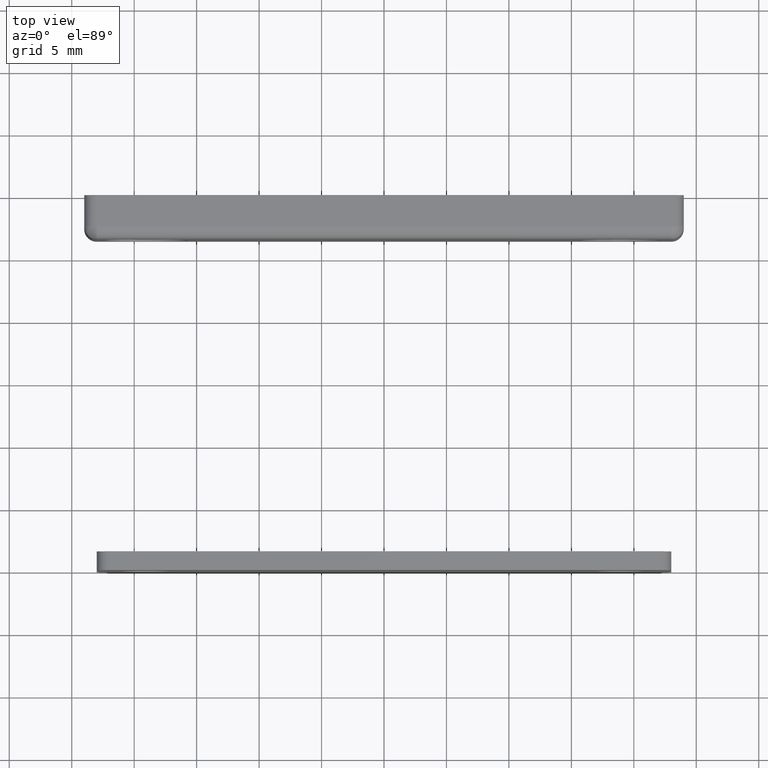
[diagram: clean part render]
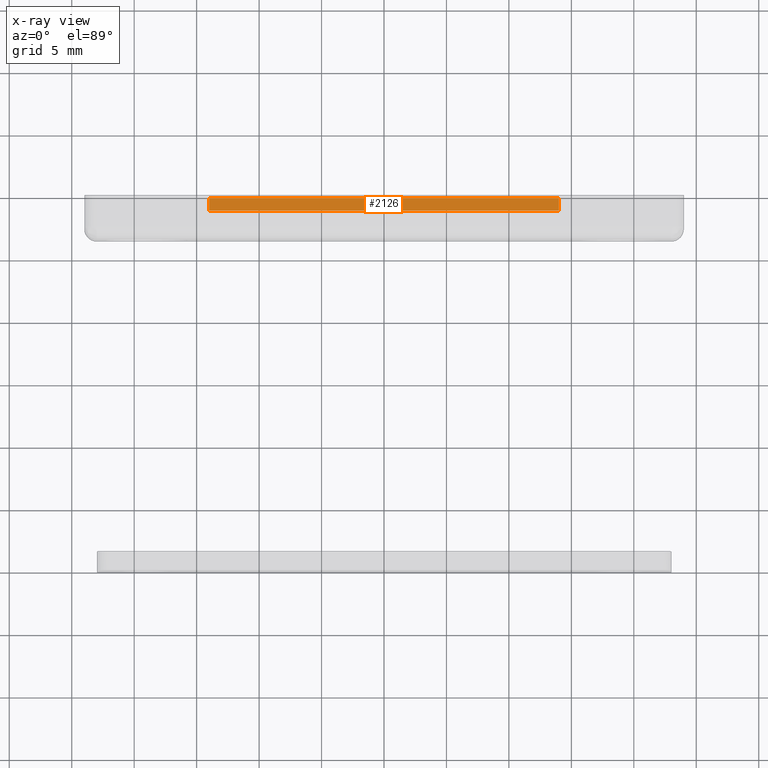
[diagram: x-ray — body ghosted, one internal face saturated and labeled with its STEP entity id]
A machine part, top view, then the same camera in x-ray: the body is ghosted and one INTERNAL B-rep face — a face not visible from any outside direction — is saturated and labeled: STEP entity #2126.
In plain terms, the highlighted face is a freeform B-spline surface patch.
Its self-contained STEP definition (entity closure, byte-faithful):
#2062=CARTESIAN_POINT('',(14.0,-1.0,-6.500000000000000));
#2063=VERTEX_POINT('',#2062);
#2071=CARTESIAN_POINT('',(-14.0,-1.0,-6.500000000000000));
#2072=VERTEX_POINT('',#2071);
#2073=CARTESIAN_POINT('',(-14.0,-1.0,-6.500000000000000));
#2074=CARTESIAN_POINT('',(14.0,-1.0,-6.500000000000000));
#2075=QUASI_UNIFORM_CURVE('',1,(#2073,#2074),.UNSPECIFIED.,.F.,.U.);
#2076=EDGE_CURVE('',#2072,#2063,#2075,.T.);
#2099=CARTESIAN_POINT('',(-15.398599945730570,-1.049949998061806,-6.500000000000000));
#2100=CARTESIAN_POINT('',(15.398600696749090,-1.049949998061806,-6.500000000000000));
#2101=CARTESIAN_POINT('',(-15.398599945730570,0.049950024883896,-6.500000000000000));
#2102=CARTESIAN_POINT('',(15.398600696749090,0.049950024883896,-6.500000000000000));
#2103=B_SPLINE_SURFACE_WITH_KNOTS('',1,1,((#2099,#2101),(#2100,#2102)),.UNSPECIFIED.,.F.,.F.,.U.,(2,2),(2,2),(0.0,30.797200642479670),(0.041708334948495,0.958291687403247),.UNSPECIFIED.);
#2104=CARTESIAN_POINT('',(-14.0,0.0,-6.500000000000000));
#2105=VERTEX_POINT('',#2104);
#2106=CARTESIAN_POINT('',(14.0,0.0,-6.500000000000000));
#2107=VERTEX_POINT('',#2106);
#2108=CARTESIAN_POINT('',(-14.0,0.0,-6.500000000000000));
#2109=CARTESIAN_POINT('',(14.0,0.0,-6.500000000000000));
#2110=QUASI_UNIFORM_CURVE('',1,(#2108,#2109),.UNSPECIFIED.,.F.,.U.);
#2111=EDGE_CURVE('',#2105,#2107,#2110,.T.);
#2112=ORIENTED_EDGE('',*,*,#2111,.F.);
#2113=CARTESIAN_POINT('',(-14.0,-1.0,-6.500000000000000));
#2114=CARTESIAN_POINT('',(-14.0,0.0,-6.500000000000000));
#2115=QUASI_UNIFORM_CURVE('',1,(#2113,#2114),.UNSPECIFIED.,.F.,.U.);
#2116=EDGE_CURVE('',#2072,#2105,#2115,.T.);
#2117=ORIENTED_EDGE('',*,*,#2116,.F.);
#2118=ORIENTED_EDGE('',*,*,#2076,.T.);
#2119=CARTESIAN_POINT('',(14.0,-1.0,-6.500000000000000));
#2120=CARTESIAN_POINT('',(14.0,0.0,-6.500000000000000));
#2121=QUASI_UNIFORM_CURVE('',1,(#2119,#2120),.UNSPECIFIED.,.F.,.U.);
#2122=EDGE_CURVE('',#2063,#2107,#2121,.T.);
#2123=ORIENTED_EDGE('',*,*,#2122,.T.);
#2124=EDGE_LOOP('',(#2112,#2117,#2118,#2123));
#2125=FACE_OUTER_BOUND('',#2124,.T.);
#2126=ADVANCED_FACE('',(#2125),#2103,.T.);